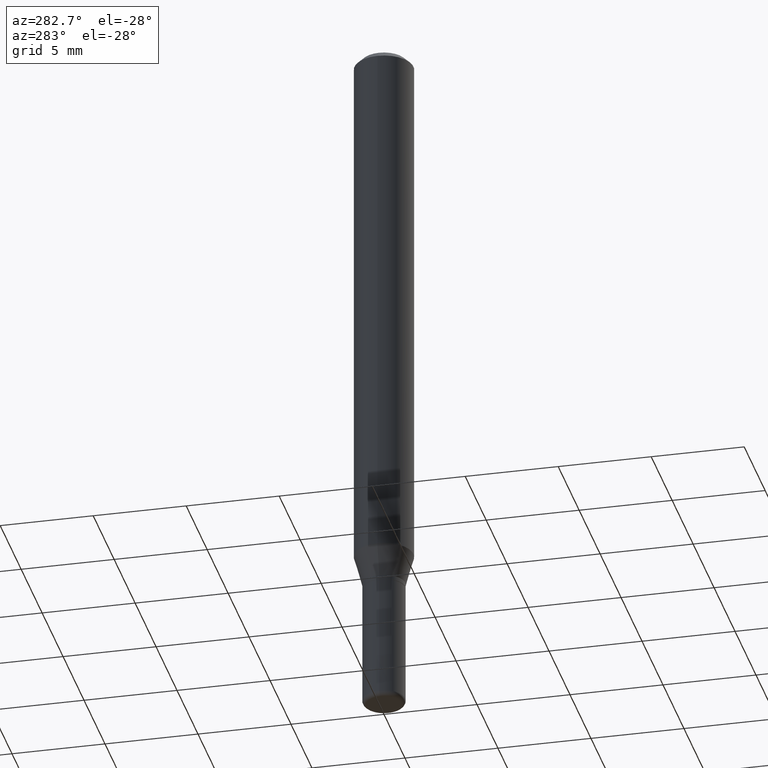
[diagram: clean part render]
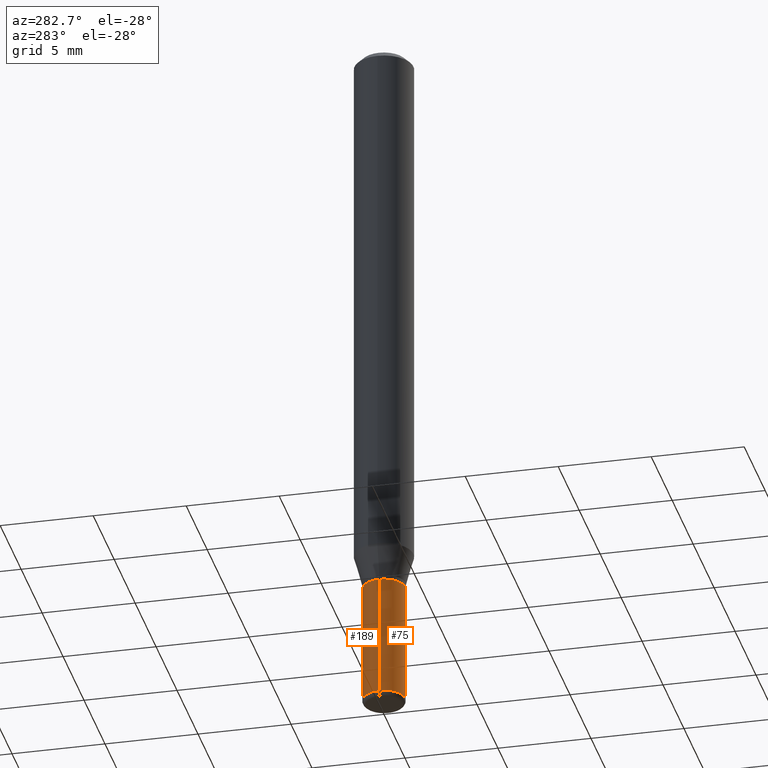
[diagram: same view with one multi-face feature highlighted, each face labeled with its STEP entity id]
A machine part, auxiliary view. The highlighted faces form ONE feature: a constant-radius fillet chain: 2 tangent blend faces with common blend radius 1.143 mm. The faces share edges in the B-rep.
Their STEP definitions:
[1] entity #189 (Cylinder):
#24 = EDGE_CURVE ( 'NONE', #267, #141, #352, .T. ) ;
#26 = CARTESIAN_POINT ( 'NONE',  ( 3.643748521215853910E-29, -5.202307194876288105E-15, -1.490000000000000213 ) ) ;
#46 = AXIS2_PLACEMENT_3D ( 'NONE', #282, #84, #82 ) ;
#48 = DIRECTION ( 'NONE',  ( 1.000000000000000000, -6.982962677686267499E-15, 4.876176775795935793E-29 ) ) ;
#54 = LINE ( 'NONE', #92, #385 ) ;
#67 = DIRECTION ( 'NONE',  ( -2.445468806185136597E-29, 3.491481338843145583E-15, 1.000000000000000000 ) ) ;
#78 = LINE ( 'NONE', #402, #354 ) ;
#82 = DIRECTION ( 'NONE',  ( 1.000000000000000000, -6.982962677686269077E-15, 0.000000000000000000 ) ) ;
#84 = DIRECTION ( 'NONE',  ( -2.445468806185136597E-29, 3.491481338843145583E-15, 1.000000000000000000 ) ) ;
#86 = DIRECTION ( 'NONE',  ( -2.445468806185136877E-29, 3.491481338843145188E-15, 1.000000000000000000 ) ) ;
#92 = CARTESIAN_POINT ( 'NONE',  ( 0.04499999999999997058, -3.142333204958818343E-16, 2.194279549108169565E-30 ) ) ;
#93 = ORIENTED_EDGE ( 'NONE', *, *, #24, .T. ) ;
#122 = AXIS2_PLACEMENT_3D ( 'NONE', #26, #67, #246 ) ;
#125 = FACE_OUTER_BOUND ( 'NONE', #426, .T. ) ;
#130 = CARTESIAN_POINT ( 'NONE',  ( 0.000000000000000000, 0.000000000000000000, 0.000000000000000000 ) ) ;
#141 = VERTEX_POINT ( 'NONE', #387 ) ;
#176 = EDGE_CURVE ( 'NONE', #396, #241, #237, .T. ) ;
#189 = ADVANCED_FACE ( 'NONE', ( #125 ), #479, .T. ) ;
#202 = AXIS2_PLACEMENT_3D ( 'NONE', #130, #261, #48 ) ;
#204 = EDGE_CURVE ( 'NONE', #267, #396, #54, .T. ) ;
#218 = CARTESIAN_POINT ( 'NONE',  ( 0.04499999999999999833, -4.608755367272951648E-15, -1.230000000000000204 ) ) ;
#223 = DIRECTION ( 'NONE',  ( -2.445468806185136877E-29, 3.491481338843145188E-15, 1.000000000000000000 ) ) ;
#237 = CIRCLE ( 'NONE', #46, 0.04499999999999999833 ) ;
#241 = VERTEX_POINT ( 'NONE', #299 ) ;
#246 = DIRECTION ( 'NONE',  ( 1.000000000000000000, -6.982962677686276177E-15, 0.000000000000000000 ) ) ;
#261 = DIRECTION ( 'NONE',  ( -2.445468806185136597E-29, 3.491481338843145583E-15, 1.000000000000000000 ) ) ;
#267 = VERTEX_POINT ( 'NONE', #296 ) ;
#282 = CARTESIAN_POINT ( 'NONE',  ( 3.007926631607718216E-29, -4.294522046777069173E-15, -1.230000000000000204 ) ) ;
#296 = CARTESIAN_POINT ( 'NONE',  ( 0.04499999999999994976, -5.516540515372169792E-15, -1.490000000000000213 ) ) ;
#299 = CARTESIAN_POINT ( 'NONE',  ( -0.04500000000000000527, -4.428670389734633666E-15, -1.230000000000000204 ) ) ;
#352 = CIRCLE ( 'NONE', #122, 0.04499999999999994976 ) ;
#354 = VECTOR ( 'NONE', #86, 39.37007874015748143 ) ;
#358 = EDGE_CURVE ( 'NONE', #141, #241, #78, .T. ) ;
#369 = ORIENTED_EDGE ( 'NONE', *, *, #204, .F. ) ;
#385 = VECTOR ( 'NONE', #223, 39.37007874015748143 ) ;
#387 = CARTESIAN_POINT ( 'NONE',  ( -0.04499999999999994976, -4.428670389734633666E-15, -1.490000000000000213 ) ) ;
#389 = ORIENTED_EDGE ( 'NONE', *, *, #358, .T. ) ;
#396 = VERTEX_POINT ( 'NONE', #218 ) ;
#402 = CARTESIAN_POINT ( 'NONE',  ( -0.04499999999999997058, 3.197442310920448746E-16, -2.213520790614706158E-30 ) ) ;
#426 = EDGE_LOOP ( 'NONE', ( #93, #389, #428, #369 ) ) ;
#428 = ORIENTED_EDGE ( 'NONE', *, *, #176, .F. ) ;
#479 = CYLINDRICAL_SURFACE ( 'NONE', #202, 0.04499999999999997058 ) ;
[2] entity #75 (Cylinder):
#54 = LINE ( 'NONE', #92, #385 ) ;
#66 = DIRECTION ( 'NONE',  ( -2.445468806185136597E-29, 3.491481338843145583E-15, 1.000000000000000000 ) ) ;
#75 = ADVANCED_FACE ( 'NONE', ( #219 ), #447, .T. ) ;
#78 = LINE ( 'NONE', #402, #354 ) ;
#86 = DIRECTION ( 'NONE',  ( -2.445468806185136877E-29, 3.491481338843145188E-15, 1.000000000000000000 ) ) ;
#87 = CARTESIAN_POINT ( 'NONE',  ( 0.000000000000000000, 0.000000000000000000, 0.000000000000000000 ) ) ;
#92 = CARTESIAN_POINT ( 'NONE',  ( 0.04499999999999997058, -3.142333204958818343E-16, 2.194279549108169565E-30 ) ) ;
#141 = VERTEX_POINT ( 'NONE', #387 ) ;
#161 = AXIS2_PLACEMENT_3D ( 'NONE', #489, #342, #338 ) ;
#186 = CIRCLE ( 'NONE', #161, 0.04499999999999994976 ) ;
#201 = ORIENTED_EDGE ( 'NONE', *, *, #464, .F. ) ;
#204 = EDGE_CURVE ( 'NONE', #267, #396, #54, .T. ) ;
#216 = EDGE_CURVE ( 'NONE', #141, #267, #186, .T. ) ;
#218 = CARTESIAN_POINT ( 'NONE',  ( 0.04499999999999999833, -4.608755367272951648E-15, -1.230000000000000204 ) ) ;
#219 = FACE_OUTER_BOUND ( 'NONE', #373, .T. ) ;
#221 = ORIENTED_EDGE ( 'NONE', *, *, #358, .F. ) ;
#223 = DIRECTION ( 'NONE',  ( -2.445468806185136877E-29, 3.491481338843145188E-15, 1.000000000000000000 ) ) ;
#241 = VERTEX_POINT ( 'NONE', #299 ) ;
#257 = ORIENTED_EDGE ( 'NONE', *, *, #216, .T. ) ;
#267 = VERTEX_POINT ( 'NONE', #296 ) ;
#296 = CARTESIAN_POINT ( 'NONE',  ( 0.04499999999999994976, -5.516540515372169792E-15, -1.490000000000000213 ) ) ;
#299 = CARTESIAN_POINT ( 'NONE',  ( -0.04500000000000000527, -4.428670389734633666E-15, -1.230000000000000204 ) ) ;
#306 = CIRCLE ( 'NONE', #394, 0.04499999999999999833 ) ;
#325 = DIRECTION ( 'NONE',  ( -2.445468806185136597E-29, 3.491481338843145583E-15, 1.000000000000000000 ) ) ;
#338 = DIRECTION ( 'NONE',  ( 1.000000000000000000, -6.982962677686276177E-15, 0.000000000000000000 ) ) ;
#342 = DIRECTION ( 'NONE',  ( -2.445468806185136597E-29, 3.491481338843145583E-15, 1.000000000000000000 ) ) ;
#347 = AXIS2_PLACEMENT_3D ( 'NONE', #87, #325, #518 ) ;
#354 = VECTOR ( 'NONE', #86, 39.37007874015748143 ) ;
#358 = EDGE_CURVE ( 'NONE', #141, #241, #78, .T. ) ;
#373 = EDGE_LOOP ( 'NONE', ( #221, #257, #417, #201 ) ) ;
#385 = VECTOR ( 'NONE', #223, 39.37007874015748143 ) ;
#387 = CARTESIAN_POINT ( 'NONE',  ( -0.04499999999999994976, -4.428670389734633666E-15, -1.490000000000000213 ) ) ;
#394 = AXIS2_PLACEMENT_3D ( 'NONE', #478, #66, #459 ) ;
#396 = VERTEX_POINT ( 'NONE', #218 ) ;
#402 = CARTESIAN_POINT ( 'NONE',  ( -0.04499999999999997058, 3.197442310920448746E-16, -2.213520790614706158E-30 ) ) ;
#417 = ORIENTED_EDGE ( 'NONE', *, *, #204, .T. ) ;
#447 = CYLINDRICAL_SURFACE ( 'NONE', #347, 0.04499999999999997058 ) ;
#459 = DIRECTION ( 'NONE',  ( 1.000000000000000000, -6.982962677686269077E-15, 0.000000000000000000 ) ) ;
#464 = EDGE_CURVE ( 'NONE', #241, #396, #306, .T. ) ;
#478 = CARTESIAN_POINT ( 'NONE',  ( 3.007926631607718216E-29, -4.294522046777069173E-15, -1.230000000000000204 ) ) ;
#489 = CARTESIAN_POINT ( 'NONE',  ( 3.643748521215853910E-29, -5.202307194876288105E-15, -1.490000000000000213 ) ) ;
#518 = DIRECTION ( 'NONE',  ( 1.000000000000000000, -6.982962677686267499E-15, 4.876176775795935793E-29 ) ) ;